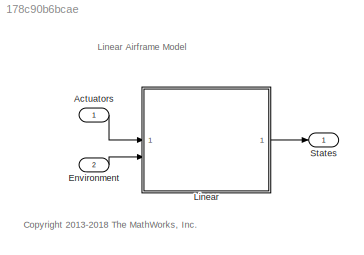
MODEL slx_178c90b6bcae
KIND model
CONFIG AbsTol = auto
CONFIG EnableMultiTasking = on
CONFIG FixedStep = Ts
CONFIG InitFcn = load('linearizedAirframe.mat');
CONFIG MaxStep = auto
CONFIG MinStep = auto
CONFIG RelTol = 1e-3
CONFIG SampleTimeConstraint = Unconstrained
CONFIG SolverName = ode3
CONFIG StartTime = 0.0
CONFIG StopTime = 10.0
BLOCK [Inport] Actuators
  OutDataTypeStr = single
  PortDimensions = 4
BLOCK [Inport] Environment
  BusOutputAsStruct = on
  OutDataTypeStr = Bus: EnvironmentBus
  Port = 2
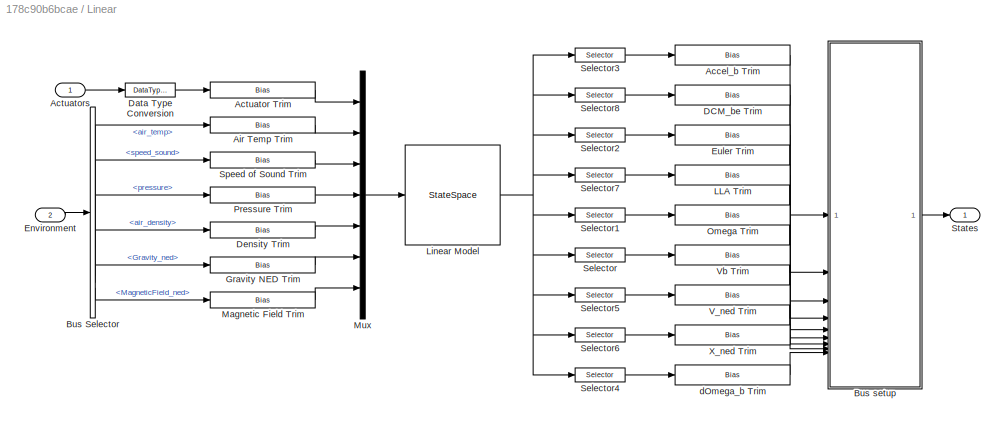
BLOCK [SubSystem] Linear
  TreatAsAtomicUnit = on
BLOCK [Bias] Linear/Accel_b Trim
  Bias = opreport.Outputs(4).y
  SaturateOnIntegerOverflow = off
BLOCK [Bias] Linear/Actuator Trim
  Bias = -opreport.Input(1).u
  SaturateOnIntegerOverflow = off
BLOCK [Inport] Linear/Actuators
BLOCK [Bias] Linear/Air Temp Trim
  Bias = -opreport.Input(3).u
  SaturateOnIntegerOverflow = off
BLOCK [BusSelector] Linear/Bus Selector
  OutputSignals = AtmosphereBus.air_temp,AtmosphereBus.speed_sound,AtmosphereBus.pressure,AtmosphereBus.air_density,Gravity_ned,MagneticField_ned
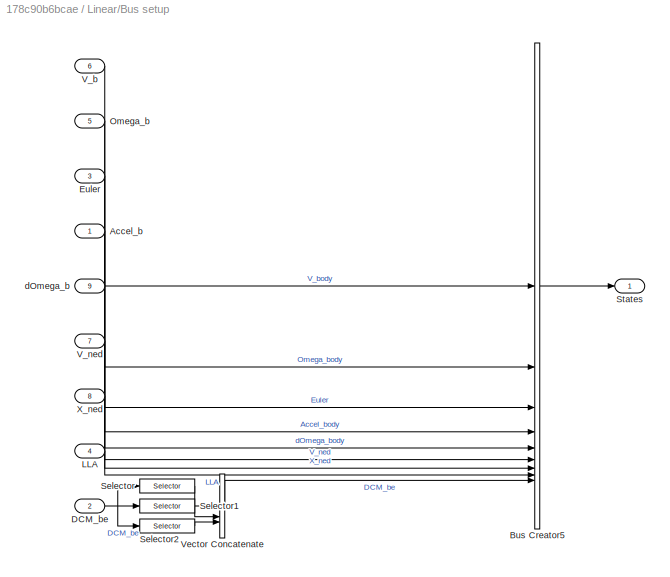
BLOCK [SubSystem] Linear/Bus setup
BLOCK [Inport] Linear/Bus setup/Accel_b
  PortDimensions = 3
  Unit = m/s^2
BLOCK [BusCreator] Linear/Bus setup/Bus Creator5
  DisplayOption = bar
  InheritFromInputs = on
  Inputs = 9
  NonVirtualBus = on
  OutDataTypeStr = Bus: StatesBus
BLOCK [Inport] Linear/Bus setup/DCM_be
  Port = 2
  PortDimensions = 9
BLOCK [Inport] Linear/Bus setup/Euler
  Port = 3
  PortDimensions = 3
  Unit = rad
BLOCK [Inport] Linear/Bus setup/LLA
  Port = 4
  PortDimensions = 3
BLOCK [Inport] Linear/Bus setup/Omega_b
  Port = 5
  PortDimensions = 3
  Unit = rad/s
BLOCK [Selector] Linear/Bus setup/Selector
  IndexOptions = Index vector (dialog)
  Indices = [1 2 3]
  InputPortWidth = 9
  OutputSizes = 1
BLOCK [Selector] Linear/Bus setup/Selector1
  IndexOptions = Index vector (dialog)
  Indices = [4 5 6]
  InputPortWidth = 9
  OutputSizes = 1
BLOCK [Selector] Linear/Bus setup/Selector2
  IndexOptions = Index vector (dialog)
  Indices = [7 8 9]
  InputPortWidth = 9
  OutputSizes = 1
BLOCK [Outport] Linear/Bus setup/States
  VectorParamsAs1DForOutWhenUnconnected = off
BLOCK [Inport] Linear/Bus setup/V_b
  Port = 6
  PortDimensions = 3
  Unit = m/s
BLOCK [Inport] Linear/Bus setup/V_ned
  Port = 7
  PortDimensions = 3
  Unit = m/second
BLOCK [Concatenate] Linear/Bus setup/Vector Concatenate
  ConcatenateDimension = 2
  Mode = Multidimensional array
  NumInputs = 3
BLOCK [Inport] Linear/Bus setup/X_ned
  Port = 8
  PortDimensions = 3
  Unit = m
BLOCK [Inport] Linear/Bus setup/dOmega_b
  Port = 9
  PortDimensions = 3
  Unit = rad/s^2
BLOCK [Bias] Linear/DCM_be Trim
  Bias = opreport.Outputs(9).y
  SaturateOnIntegerOverflow = off
BLOCK [DataTypeConversion] Linear/Data Type Conversion
  OutDataTypeStr = double
  RndMeth = Floor
  SaturateOnIntegerOverflow = off
BLOCK [Bias] Linear/Density Trim
  Bias = -opreport.Input(6).u
  SaturateOnIntegerOverflow = off
BLOCK [Inport] Linear/Environment
  OutDataTypeStr = Bus: EnvironmentBus
  Port = 2
BLOCK [Bias] Linear/Euler Trim
  Bias = opreport.Outputs(3).y
  SaturateOnIntegerOverflow = off
BLOCK [Bias] Linear/Gravity NED Trim
  Bias = -opreport.Input(2).u
  SaturateOnIntegerOverflow = off
BLOCK [Bias] Linear/LLA Trim
  Bias = opreport.Outputs(8).y
  SaturateOnIntegerOverflow = off
BLOCK [StateSpace] Linear/Linear Model
  A = linsys.a
  B = linsys.b
  C = linsys.c
  D = linsys.d
  InitialCondition = zeros(length(linsys.a),1)
BLOCK [Bias] Linear/Magnetic Field Trim
  Bias = -opreport.Input(7).u
  SaturateOnIntegerOverflow = off
BLOCK [Mux] Linear/Mux
  DisplayOption = bar
  Inputs = 7
BLOCK [Bias] Linear/Omega Trim
  Bias = opreport.Outputs(2).y
  SaturateOnIntegerOverflow = off
BLOCK [Bias] Linear/Pressure Trim
  Bias = -opreport.Input(5).u
  SaturateOnIntegerOverflow = off
BLOCK [Selector] Linear/Selector
  IndexOptions = Index vector (dialog)
  Indices = [22 23 24]
  InputPortWidth = 33
  OutputSizes = 1
BLOCK [Selector] Linear/Selector1
  IndexOptions = Index vector (dialog)
  Indices = [19 20 21]
  InputPortWidth = 33
  OutputSizes = 1
BLOCK [Selector] Linear/Selector2
  IndexOptions = Index vector (dialog)
  Indices = [13 14 15]
  InputPortWidth = 33
  OutputSizes = 1
BLOCK [Selector] Linear/Selector3
  IndexOptions = Index vector (dialog)
  Indices = [1 2 3]
  InputPortWidth = 33
  OutputSizes = 1
BLOCK [Selector] Linear/Selector4
  IndexOptions = Index vector (dialog)
  Indices = [31 32 33]
  InputPortWidth = 33
  OutputSizes = 1
BLOCK [Selector] Linear/Selector5
  IndexOptions = Index vector (dialog)
  Indices = [25 26 27]
  InputPortWidth = 33
  OutputSizes = 1
BLOCK [Selector] Linear/Selector6
  IndexOptions = Index vector (dialog)
  Indices = [28 29 30]
  InputPortWidth = 33
  OutputSizes = 1
BLOCK [Selector] Linear/Selector7
  IndexOptions = Index vector (dialog)
  Indices = [16 17 18]
  InputPortWidth = 33
  OutputSizes = 1
BLOCK [Selector] Linear/Selector8
  IndexOptions = Index vector (dialog)
  Indices = [4 5 6 7 8 9 10 11 12]
  InputPortWidth = 33
  OutputSizes = 1
BLOCK [Bias] Linear/Speed of Sound Trim
  Bias = -opreport.Input(4).u
  SaturateOnIntegerOverflow = off
BLOCK [Outport] Linear/States
  OutDataTypeStr = Bus: StatesBus
  VectorParamsAs1DForOutWhenUnconnected = off
BLOCK [Bias] Linear/V_ned Trim
  Bias = opreport.Outputs(6).y
  SaturateOnIntegerOverflow = off
BLOCK [Bias] Linear/Vb Trim
  Bias = opreport.Outputs(1).y
  SaturateOnIntegerOverflow = off
BLOCK [Bias] Linear/X_ned Trim
  Bias = opreport.Outputs(7).y
  SaturateOnIntegerOverflow = off
BLOCK [Bias] Linear/dOmega_b Trim
  Bias = opreport.Outputs(5).y
  SaturateOnIntegerOverflow = off
BLOCK [Outport] States
  BusOutputAsStruct = on
  OutDataTypeStr = Bus: StatesBus
  VectorParamsAs1DForOutWhenUnconnected = off
ANNOTATION (root): <copyright redacted>
ANNOTATION (root): Linear Airframe Model
LINE Actuators:1 -> Linear:1
LINE Environment:1 -> Linear:2
LINE Linear/Accel_b Trim:1 -> Linear/Bus setup:1
LINE Linear/Actuator Trim:1 -> Linear/Mux:1
LINE Linear/Actuators:1 -> Linear/Data Type Conversion:1
LINE Linear/Air Temp Trim:1 -> Linear/Mux:2
LINE Linear/Bus Selector:1 -> Linear/Air Temp Trim:1
LINE Linear/Bus Selector:2 -> Linear/Speed of Sound Trim:1
LINE Linear/Bus Selector:3 -> Linear/Pressure Trim:1
LINE Linear/Bus Selector:4 -> Linear/Density Trim:1
LINE Linear/Bus Selector:5 -> Linear/Gravity NED Trim:1
LINE Linear/Bus Selector:6 -> Linear/Magnetic Field Trim:1
LINE Linear/Bus setup/Accel_b:1 -> Linear/Bus setup/Bus Creator5:4
LINE Linear/Bus setup/Bus Creator5:1 -> Linear/Bus setup/States:1
NET Linear/Bus setup/DCM_be:1 -> Linear/Bus setup/Selector1:1, Linear/Bus setup/Selector2:1, Linear/Bus setup/Selector:1
LINE Linear/Bus setup/Euler:1 -> Linear/Bus setup/Bus Creator5:3
LINE Linear/Bus setup/LLA:1 -> Linear/Bus setup/Bus Creator5:8
LINE Linear/Bus setup/Omega_b:1 -> Linear/Bus setup/Bus Creator5:2
LINE Linear/Bus setup/Selector1:1 -> Linear/Bus setup/Vector Concatenate:2
LINE Linear/Bus setup/Selector2:1 -> Linear/Bus setup/Vector Concatenate:3
LINE Linear/Bus setup/Selector:1 -> Linear/Bus setup/Vector Concatenate:1
LINE Linear/Bus setup/V_b:1 -> Linear/Bus setup/Bus Creator5:1
LINE Linear/Bus setup/V_ned:1 -> Linear/Bus setup/Bus Creator5:6
LINE Linear/Bus setup/Vector Concatenate:1 -> Linear/Bus setup/Bus Creator5:9
LINE Linear/Bus setup/X_ned:1 -> Linear/Bus setup/Bus Creator5:7
LINE Linear/Bus setup/dOmega_b:1 -> Linear/Bus setup/Bus Creator5:5
LINE Linear/Bus setup:1 -> Linear/States:1
LINE Linear/DCM_be Trim:1 -> Linear/Bus setup:2
LINE Linear/Data Type Conversion:1 -> Linear/Actuator Trim:1
LINE Linear/Density Trim:1 -> Linear/Mux:5
LINE Linear/Environment:1 -> Linear/Bus Selector:1
LINE Linear/Euler Trim:1 -> Linear/Bus setup:3
LINE Linear/Gravity NED Trim:1 -> Linear/Mux:6
LINE Linear/LLA Trim:1 -> Linear/Bus setup:4
NET Linear/Linear Model:1 -> Linear/Selector1:1, Linear/Selector2:1, Linear/Selector3:1, Linear/Selector4:1, Linear/Selector5:1, Linear/Selector6:1, Linear/Selector7:1, Linear/Selector8:1, Linear/Selector:1
LINE Linear/Magnetic Field Trim:1 -> Linear/Mux:7
LINE Linear/Mux:1 -> Linear/Linear Model:1
LINE Linear/Omega Trim:1 -> Linear/Bus setup:5
LINE Linear/Pressure Trim:1 -> Linear/Mux:4
LINE Linear/Selector1:1 -> Linear/Omega Trim:1
LINE Linear/Selector2:1 -> Linear/Euler Trim:1
LINE Linear/Selector3:1 -> Linear/Accel_b Trim:1
LINE Linear/Selector4:1 -> Linear/dOmega_b Trim:1
LINE Linear/Selector5:1 -> Linear/V_ned Trim:1
LINE Linear/Selector6:1 -> Linear/X_ned Trim:1
LINE Linear/Selector7:1 -> Linear/LLA Trim:1
LINE Linear/Selector8:1 -> Linear/DCM_be Trim:1
LINE Linear/Selector:1 -> Linear/Vb Trim:1
LINE Linear/Speed of Sound Trim:1 -> Linear/Mux:3
LINE Linear/V_ned Trim:1 -> Linear/Bus setup:7
LINE Linear/Vb Trim:1 -> Linear/Bus setup:6
LINE Linear/X_ned Trim:1 -> Linear/Bus setup:8
LINE Linear/dOmega_b Trim:1 -> Linear/Bus setup:9
LINE Linear:1 -> States:1
note: NET lines group one-source signal fan-out (src -> all destinations, sorted); 1:1 wires keep LINE
